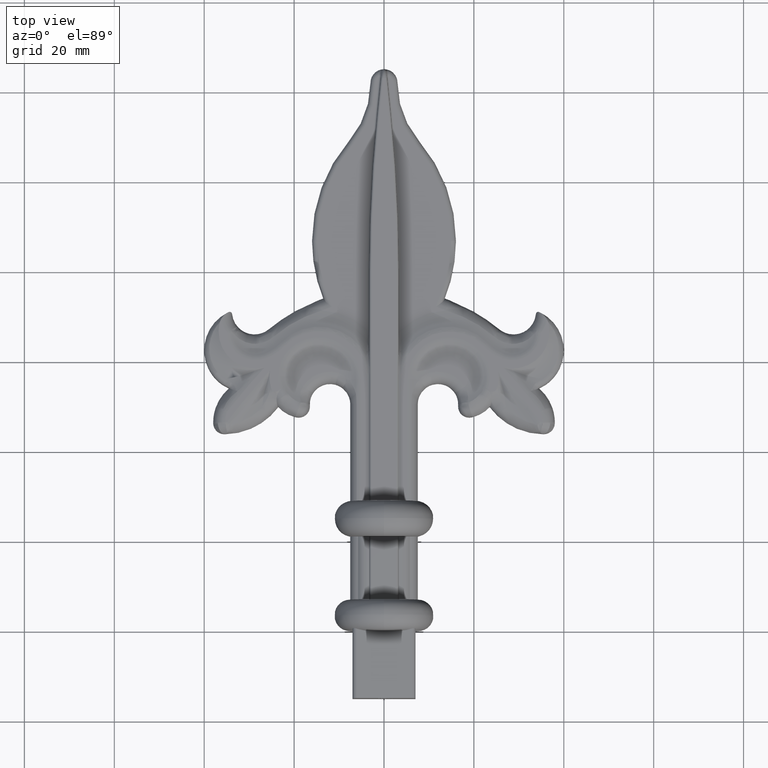
[diagram: clean part render]
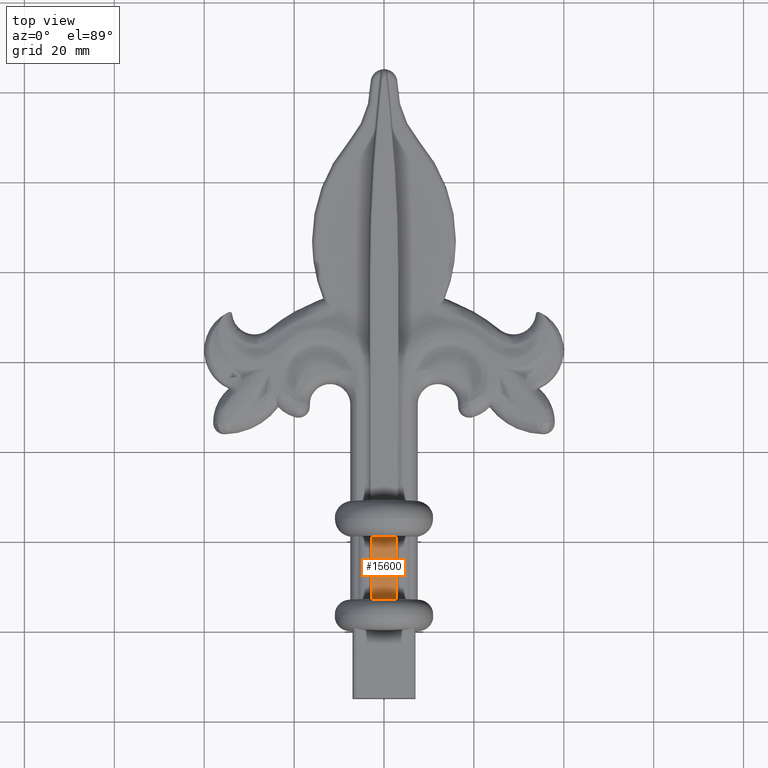
[diagram: same view with one face highlighted and labeled with its STEP entity id]
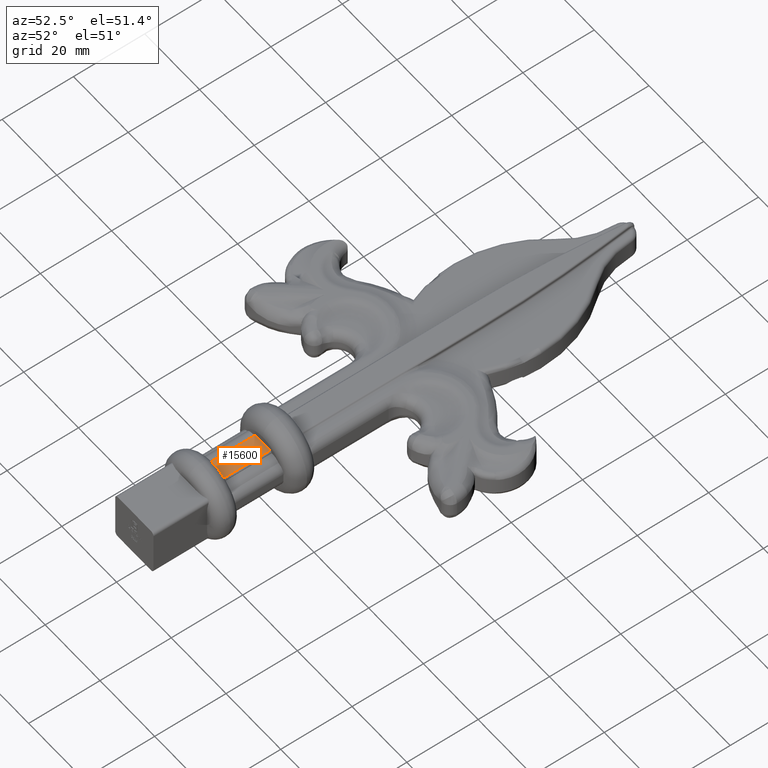
[diagram: same view with one face highlighted and labeled with its STEP entity id]
A machine part, top view. The second image highlights one B-rep face of the part: STEP entity #15600.
A second angle (auxiliary view) of the same face is appended — the face is thin or edge-on in the first view.
In plain terms, the highlighted planar face has unit normal (0, 0, 1).
Its self-contained STEP definition (entity closure, byte-faithful):
#956 = VERTEX_POINT ( 'NONE', #26926 ) ;
#1573 = VERTEX_POINT ( 'NONE', #6101 ) ;
#1877 = LINE ( 'NONE', #10943, #9466 ) ;
#3835 = DIRECTION ( 'NONE',  ( -1.000000000000000000, 0.000000000000000000, 0.000000000000000000 ) ) ;
#3842 = EDGE_CURVE ( 'NONE', #956, #14985, #12078, .T. ) ;
#5902 = DIRECTION ( 'NONE',  ( 0.000000000000000000, 0.000000000000000000, 1.000000000000000000 ) ) ;
#6101 = CARTESIAN_POINT ( 'NONE',  ( 2.749999999999974687, 21.00000000000000000, 5.000000000000000000 ) ) ;
#8196 = VERTEX_POINT ( 'NONE', #26444 ) ;
#9466 = VECTOR ( 'NONE', #11225, 1000.000000000000000 ) ;
#10183 = LINE ( 'NONE', #17154, #12304 ) ;
#10490 = CARTESIAN_POINT ( 'NONE',  ( -2.749999999999975131, 21.00000000000000355, 5.000000000000000000 ) ) ;
#10943 = CARTESIAN_POINT ( 'NONE',  ( 2.749999999999975131, 21.00000000000000355, 5.000000000000000000 ) ) ;
#11225 = DIRECTION ( 'NONE',  ( 1.188166764367675911E-17, 1.000000000000000000, -0.000000000000000000 ) ) ;
#11764 = ORIENTED_EDGE ( 'NONE', *, *, #15616, .T. ) ;
#12078 = LINE ( 'NONE', #10490, #19370 ) ;
#12304 = VECTOR ( 'NONE', #3835, 1000.000000000000000 ) ;
#12603 = PLANE ( 'NONE',  #21665 ) ;
#13918 = EDGE_CURVE ( 'NONE', #8196, #1573, #1877, .T. ) ;
#14289 = ORIENTED_EDGE ( 'NONE', *, *, #24180, .T. ) ;
#14845 = DIRECTION ( 'NONE',  ( 1.000000000000000000, 0.000000000000000000, -0.000000000000000000 ) ) ;
#14985 = VERTEX_POINT ( 'NONE', #23759 ) ;
#15600 = ADVANCED_FACE ( 'NONE', ( #20280 ), #12603, .T. ) ;
#15616 = EDGE_CURVE ( 'NONE', #1573, #14985, #10183, .T. ) ;
#17154 = CARTESIAN_POINT ( 'NONE',  ( 10.99999999999999822, 21.00000000000000000, 5.000000000000000000 ) ) ;
#19370 = VECTOR ( 'NONE', #26079, 1000.000000000000000 ) ;
#20280 = FACE_OUTER_BOUND ( 'NONE', #28039, .T. ) ;
#21539 = CARTESIAN_POINT ( 'NONE',  ( 1.145786434690479240E-53, 122.0000000000000000, 5.000000000000000000 ) ) ;
#21665 = AXIS2_PLACEMENT_3D ( 'NONE', #21539, #5902, #14845 ) ;
#22811 = CARTESIAN_POINT ( 'NONE',  ( -3.249999999999975131, 6.999999999999999112, 5.000000000000000000 ) ) ;
#23739 = VECTOR ( 'NONE', #25353, 1000.000000000000000 ) ;
#23759 = CARTESIAN_POINT ( 'NONE',  ( -2.749999999999974687, 21.00000000000000000, 5.000000000000000000 ) ) ;
#24180 = EDGE_CURVE ( 'NONE', #956, #8196, #25126, .T. ) ;
#25126 = LINE ( 'NONE', #22811, #23739 ) ;
#25353 = DIRECTION ( 'NONE',  ( 1.000000000000000000, 0.000000000000000000, 0.000000000000000000 ) ) ;
#25401 = ORIENTED_EDGE ( 'NONE', *, *, #13918, .T. ) ;
#26079 = DIRECTION ( 'NONE',  ( -1.188166764367675911E-17, 1.000000000000000000, 0.000000000000000000 ) ) ;
#26444 = CARTESIAN_POINT ( 'NONE',  ( 2.749999999999974687, 6.999999999999999112, 5.000000000000000000 ) ) ;
#26493 = ORIENTED_EDGE ( 'NONE', *, *, #3842, .F. ) ;
#26926 = CARTESIAN_POINT ( 'NONE',  ( -2.749999999999974687, 6.999999999999999112, 5.000000000000000000 ) ) ;
#28039 = EDGE_LOOP ( 'NONE', ( #14289, #25401, #11764, #26493 ) ) ;